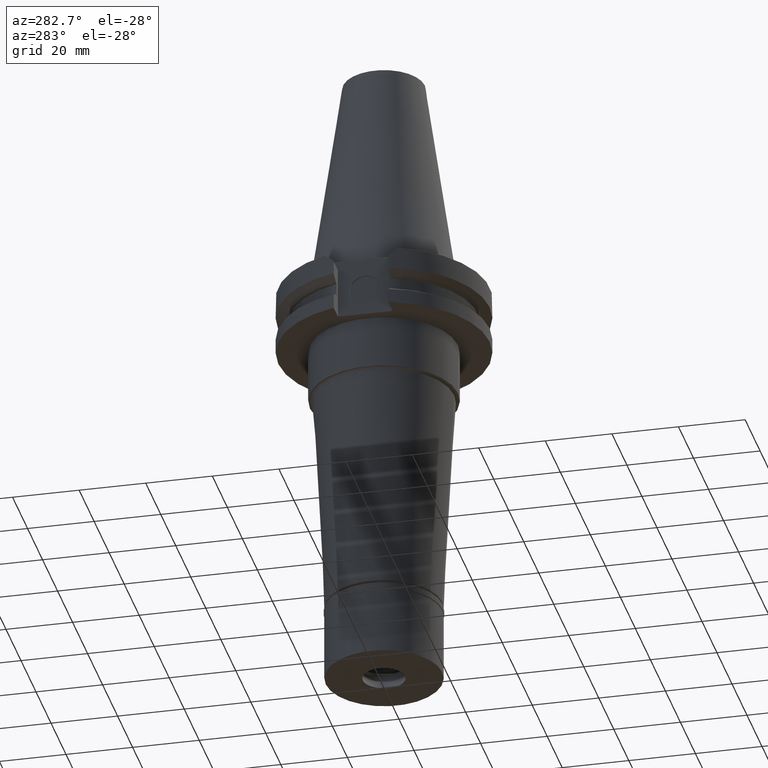
[diagram: clean part render]
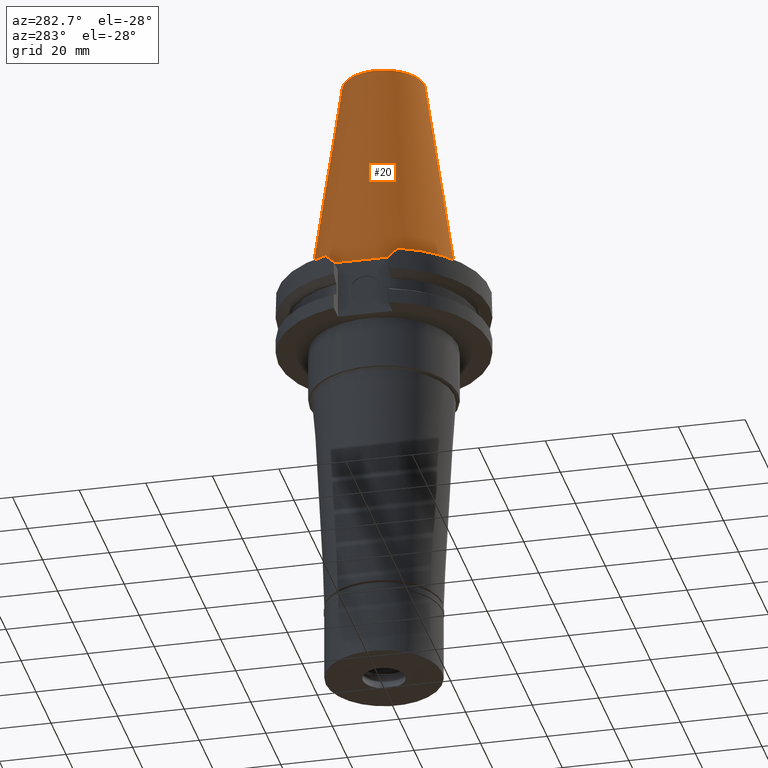
[diagram: same view with one face highlighted and labeled with its STEP entity id]
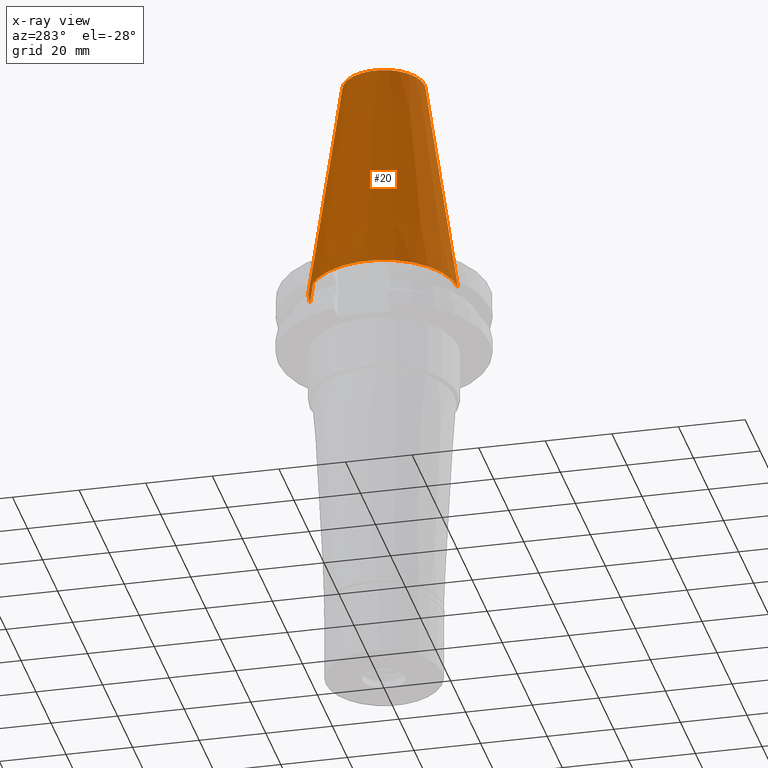
[diagram: x-ray of the same camera — body ghosted, the highlighted face saturated]
A machine part, auxiliary view. The second image highlights one B-rep face of the part: STEP entity #20.
The next image is the same camera in x-ray: the body ghosted, the highlighted face saturated — about 0% of this face is hidden behind the body in this view.
In plain terms, the highlighted conical surface has half-angle 8.297 deg.
Its self-contained STEP definition (entity closure, byte-faithful):
#20 = ADVANCED_FACE ( 'NONE', ( #1017 ), #24, .T. ) ;
#24 = CONICAL_SURFACE ( 'NONE', #1880, 17.24843444035000317, 0.1448125860318199565 ) ;
#157 = DIRECTION ( 'NONE',  ( 0.0000000000000000000, -1.000000000000000000, 0.0000000000000000000 ) ) ;
#230 = EDGE_CURVE ( 'NONE', #1588, #2286, #2154, .T. ) ;
#492 = CARTESIAN_POINT ( 'NONE',  ( 0.0000000000000000000, 1.642557519355999895E-14, -3.126388037344000570E-13 ) ) ;
#790 = EDGE_LOOP ( 'NONE', ( #3075, #2001, #1436, #1968 ) ) ;
#818 = CARTESIAN_POINT ( 'NONE',  ( 0.0000000000000000000, 1.642557519355999895E-14, 34.12500000000000000 ) ) ;
#1017 = FACE_OUTER_BOUND ( 'NONE', #790, .T. ) ;
#1115 = AXIS2_PLACEMENT_3D ( 'NONE', #2082, #1277, #2663 ) ;
#1139 = CARTESIAN_POINT ( 'NONE',  ( 0.0000000000000000000, 12.27186888070000137, 68.25000000000000000 ) ) ;
#1156 = CARTESIAN_POINT ( 'NONE',  ( 0.0000000000000000000, -12.27186888070000137, 68.25000000000000000 ) ) ;
#1257 = CARTESIAN_POINT ( 'NONE',  ( 0.0000000000000000000, -22.22500000000000142, -2.131628207279999655E-13 ) ) ;
#1277 = DIRECTION ( 'NONE',  ( 0.0000000000000000000, 0.0000000000000000000, -1.000000000000000000 ) ) ;
#1374 = VERTEX_POINT ( 'NONE', #1156 ) ;
#1397 = VECTOR ( 'NONE', #2859, 1000.000000000000114 ) ;
#1436 = ORIENTED_EDGE ( 'NONE', *, *, #1681, .T. ) ;
#1500 = AXIS2_PLACEMENT_3D ( 'NONE', #492, #2029, #157 ) ;
#1588 = VERTEX_POINT ( 'NONE', #1257 ) ;
#1656 = DIRECTION ( 'NONE',  ( 0.0000000000000000000, 0.1443069799456937474, -0.9895329683941577192 ) ) ;
#1681 = EDGE_CURVE ( 'NONE', #1374, #1883, #2378, .T. ) ;
#1788 = VECTOR ( 'NONE', #1656, 1000.000000000000114 ) ;
#1827 = LINE ( 'NONE', #3355, #1788 ) ;
#1839 = DIRECTION ( 'NONE',  ( 0.0000000000000000000, -1.000000000000000000, 0.0000000000000000000 ) ) ;
#1880 = AXIS2_PLACEMENT_3D ( 'NONE', #818, #2111, #1839 ) ;
#1883 = VERTEX_POINT ( 'NONE', #1139 ) ;
#1968 = ORIENTED_EDGE ( 'NONE', *, *, #2291, .T. ) ;
#2001 = ORIENTED_EDGE ( 'NONE', *, *, #2562, .F. ) ;
#2029 = DIRECTION ( 'NONE',  ( 0.0000000000000000000, 0.0000000000000000000, -1.000000000000000000 ) ) ;
#2082 = CARTESIAN_POINT ( 'NONE',  ( 0.0000000000000000000, 1.642557519355999895E-14, 68.25000000000000000 ) ) ;
#2111 = DIRECTION ( 'NONE',  ( 0.0000000000000000000, 0.0000000000000000000, -1.000000000000000000 ) ) ;
#2154 = CIRCLE ( 'NONE', #1500, 22.22500000000000142 ) ;
#2286 = VERTEX_POINT ( 'NONE', #3104 ) ;
#2291 = EDGE_CURVE ( 'NONE', #1883, #2286, #1827, .T. ) ;
#2378 = CIRCLE ( 'NONE', #1115, 12.27186888070000137 ) ;
#2562 = EDGE_CURVE ( 'NONE', #1374, #1588, #2805, .T. ) ;
#2663 = DIRECTION ( 'NONE',  ( 0.0000000000000000000, -1.000000000000000000, 0.0000000000000000000 ) ) ;
#2805 = LINE ( 'NONE', #3079, #1397 ) ;
#2859 = DIRECTION ( 'NONE',  ( 0.0000000000000000000, -0.1443069799456937474, -0.9895329683941577192 ) ) ;
#3075 = ORIENTED_EDGE ( 'NONE', *, *, #230, .F. ) ;
#3079 = CARTESIAN_POINT ( 'NONE',  ( 0.0000000000000000000, -12.27186888070000137, 68.25000000000000000 ) ) ;
#3104 = CARTESIAN_POINT ( 'NONE',  ( 0.0000000000000000000, 22.22500000000000142, -2.131628207279999655E-13 ) ) ;
#3355 = CARTESIAN_POINT ( 'NONE',  ( 0.0000000000000000000, 12.27186888070000137, 68.25000000000000000 ) ) ;